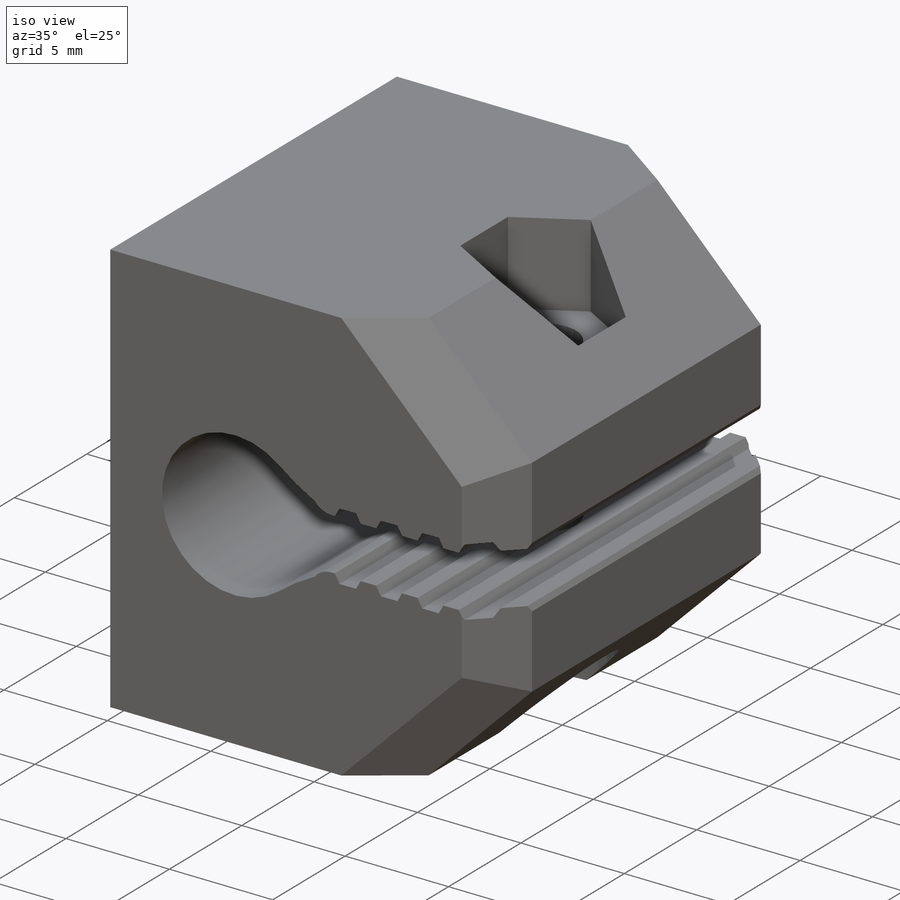
[diagram: iso view]
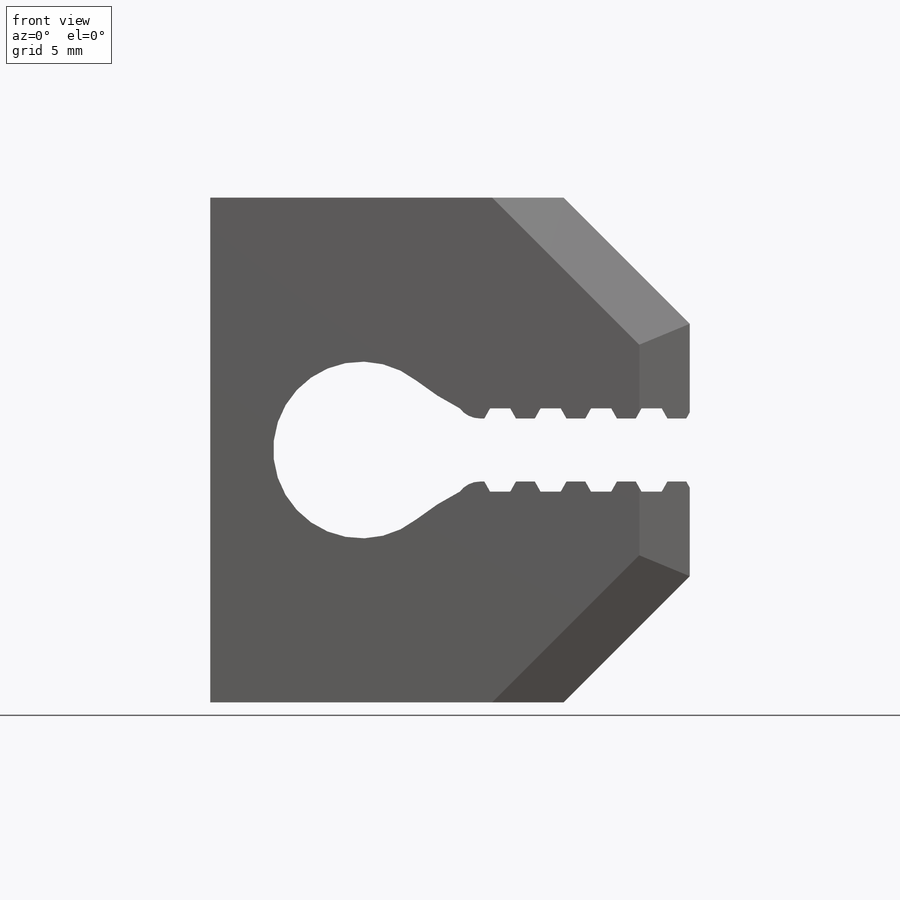
[diagram: front view]
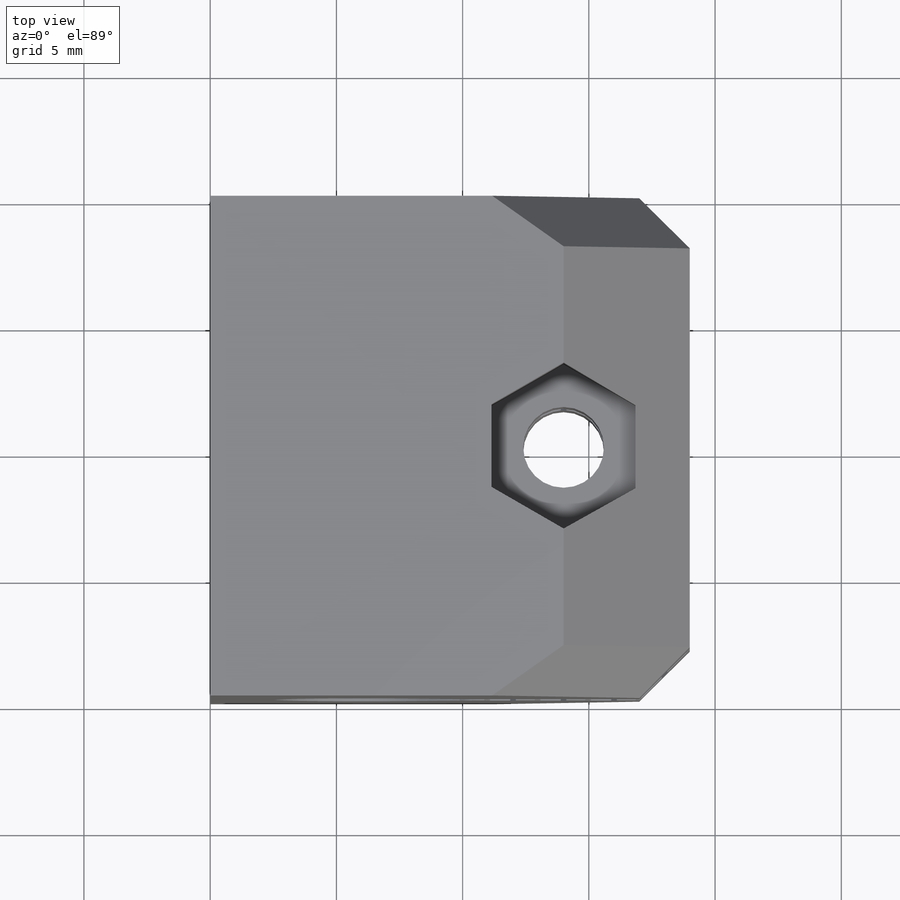
[diagram: top view]
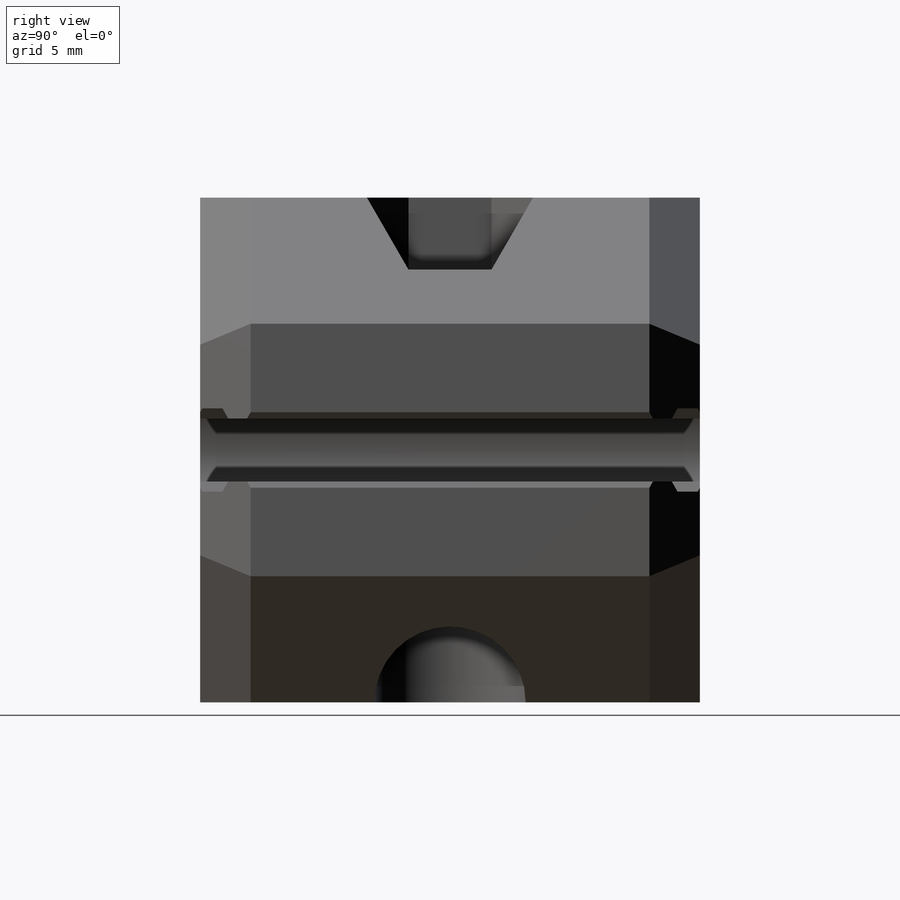
[diagram: right view]
SOLIDWORKS PART (.sldprt)
format: sldprt  version: not decoded by parser v0  size: 312,320 bytes
history: native  units: mm
features: sketch x4, cut_extrude x3, fillet x2, chamfer x2, material x1, extrude x1 (+11 scaffold rows collapsed)
feature tree (24):
  scaffold x11  (default folders/planes/origin — collapsed)
  material  "Material <not specified>"
  sketch  "Sketch1"  dims[c1.D3=~4.068023mm c1.D5=7.0mm c1.D9=0.3304mm c1.D1=~27.205472mm c1.D2=~55.735769mm c2.D1=20.0mm c2.D2=19.0mm c2.D3=6.0mm c2.D4=10.0mm c2.D6=2.5mm c2.D7=3.3mm c2.D8=1.65mm c2.D9=1.25mm c2.D10=0.8mm c2.D12=2.0mm c3.D9=0.225mm c3.D13=~0.138335mm c3.D14=~0.245929mm c3.D11=6.0]
  extrude  "Boss-Extrude1"  Depth=19.8mm
  fillet  "Fillet1"  Radius=10mm
  fillet  "Fillet2"  Radius=1mm
  chamfer  "Chamfer1"  Distance=5mm Angle=45deg
  sketch  "Sketch2"  dims[D1=3.2mm D2=9.9mm D3=14.0mm]
  cut_extrude  "Cut-Extrude1"  [1 undecoded]
  sketch  "Sketch3"  dims[D1=6.0mm]
  cut_extrude  "Cut-Extrude2"  Depth=4mm
  sketch  "Sketch4"  dims[D1=5.7mm]
  cut_extrude  "Cut-Extrude3"  Depth=4mm
  chamfer  "Chamfer2"  Distance=2mm Angle=45deg
decode coverage: 11 of 12 modeling features carry decoded parameters
note: ~ marks probable driven/reference dimensions
note: 1 parameter value undecoded
note: suppression state not decoded; provenance and decode notes live in map.json
